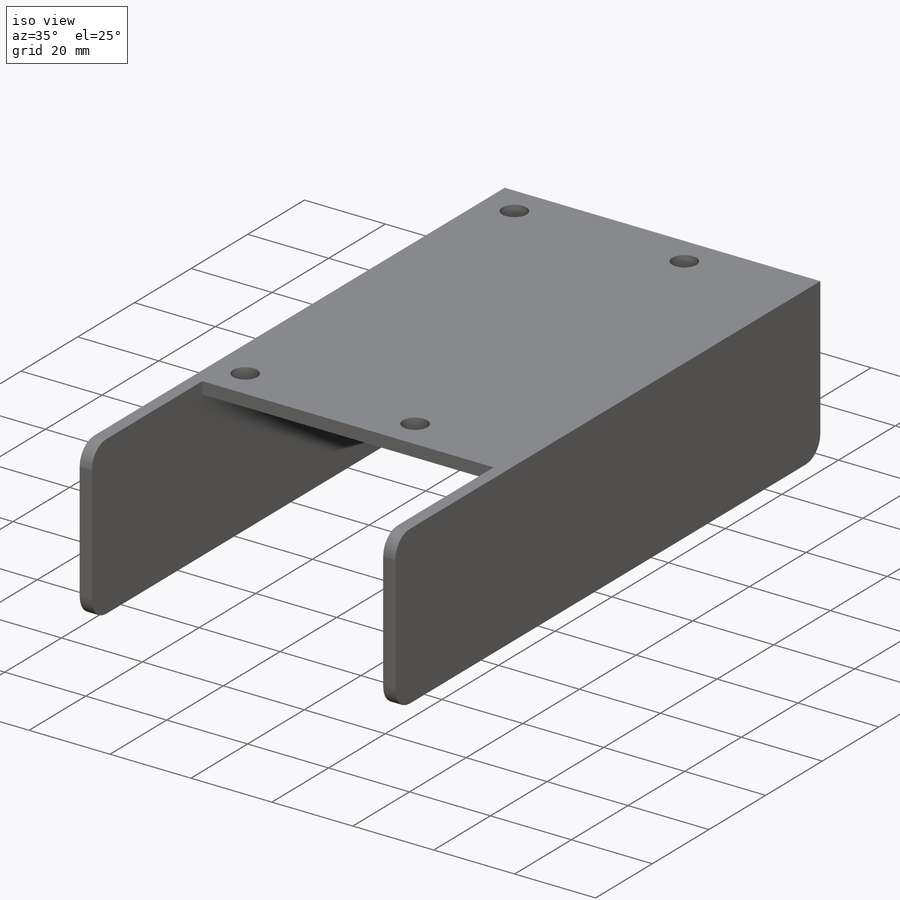
[diagram: iso view]
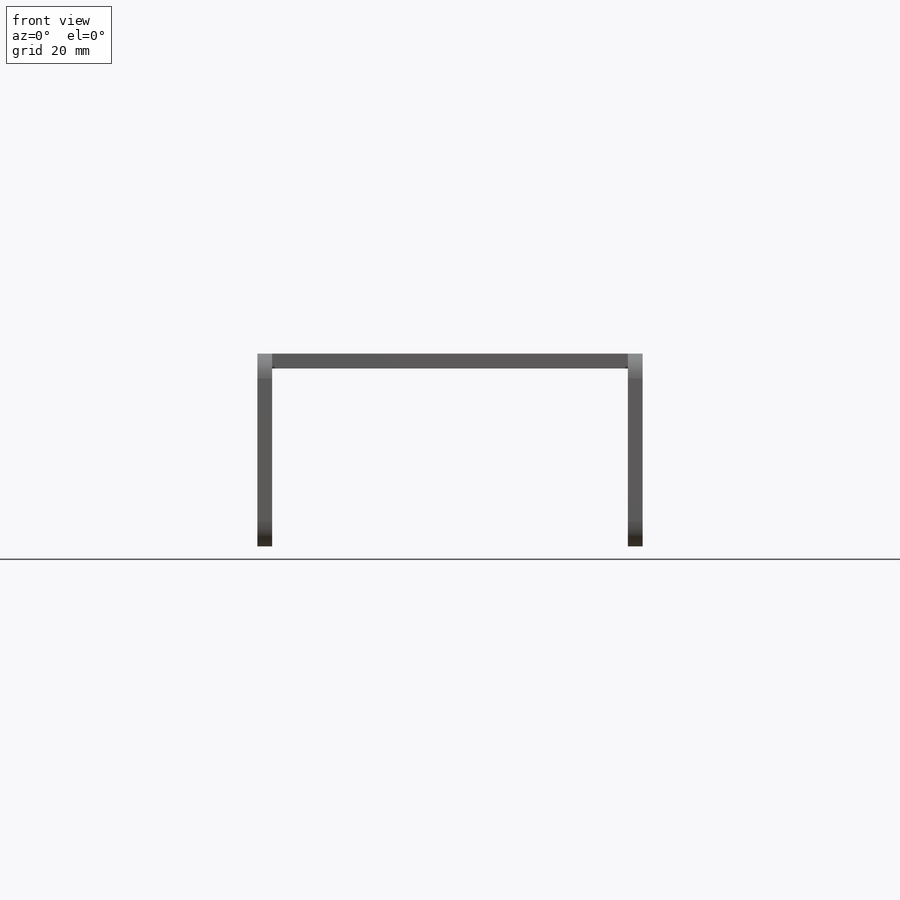
[diagram: front view]
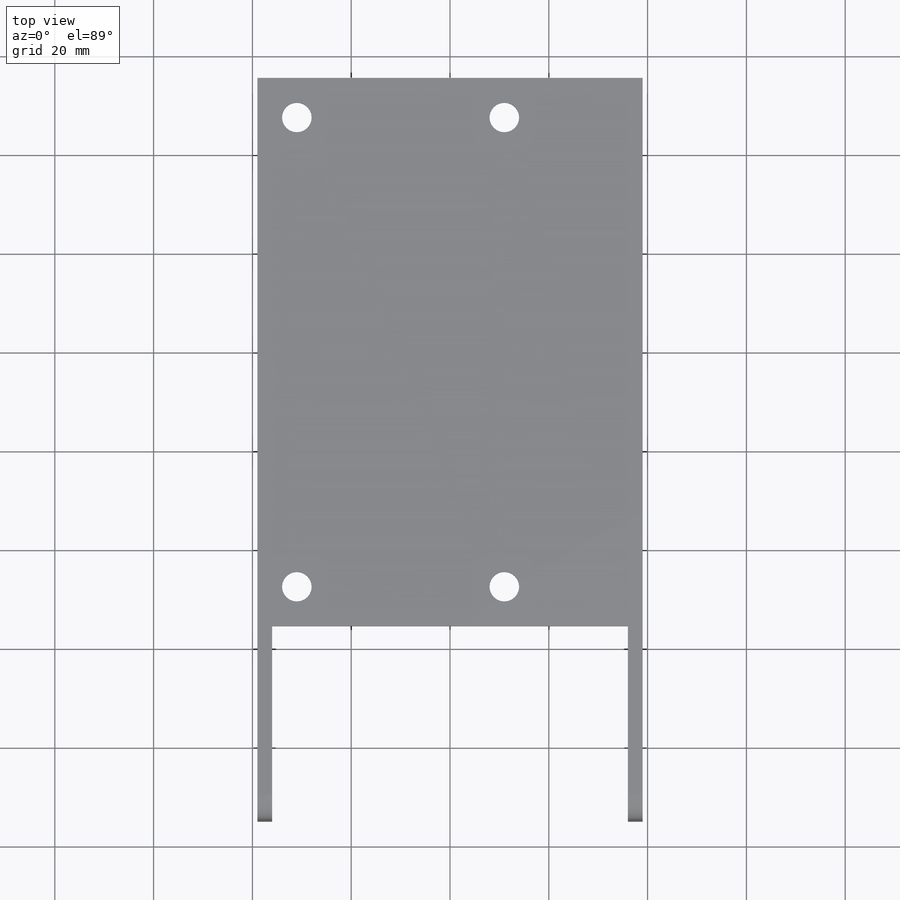
[diagram: top view]
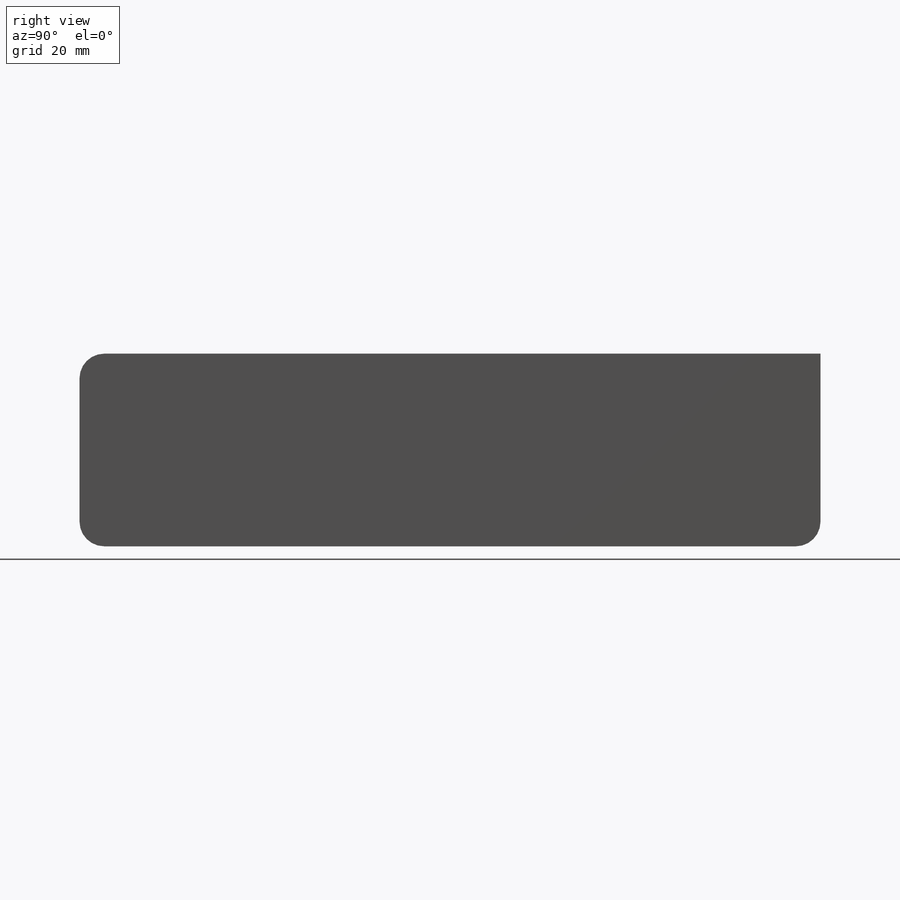
[diagram: right view]
SOLIDWORKS PART (.sldprt)
format: sldprt  version: not decoded by parser v0  size: 291,840 bytes
history: native  units: mm
features: sketch x3, mirror x2, cut_extrude x2, material x1, extrude x1, shell x1, fillet x1 (+11 scaffold rows collapsed)
feature tree (22):
  scaffold x11  (default folders/planes/origin — collapsed)
  material  "Material <not specified>"
  sketch  "Sketch1"  dims[D9=6.0mm D2=39.0mm D3=111.0mm D4=39.0mm D5=3.0mm D6=75.0mm D7=8.0mm D8=8.0mm D10=55.5mm D11=150.0mm D1=4.0]
  extrude  "Boss-Extrude1"  Depth=39mm
  mirror  "Mirror1"
  shell  "Shell1"  Thickness=3mm
  sketch  "Sketch2"
  cut_extrude  "Cut-Extrude1"  [1 undecoded]
  mirror  "Mirror2"
  fillet  "Fillet1"  Radius=5mm
  sketch  "Sketch3"  dims[D2=42.0mm D1=2.0]
  cut_extrude  "Cut-Extrude2"  [1 undecoded]
decode coverage: 5 of 10 modeling features carry decoded parameters
note: 2 parameter values undecoded
note: suppression state not decoded; provenance and decode notes live in map.json
